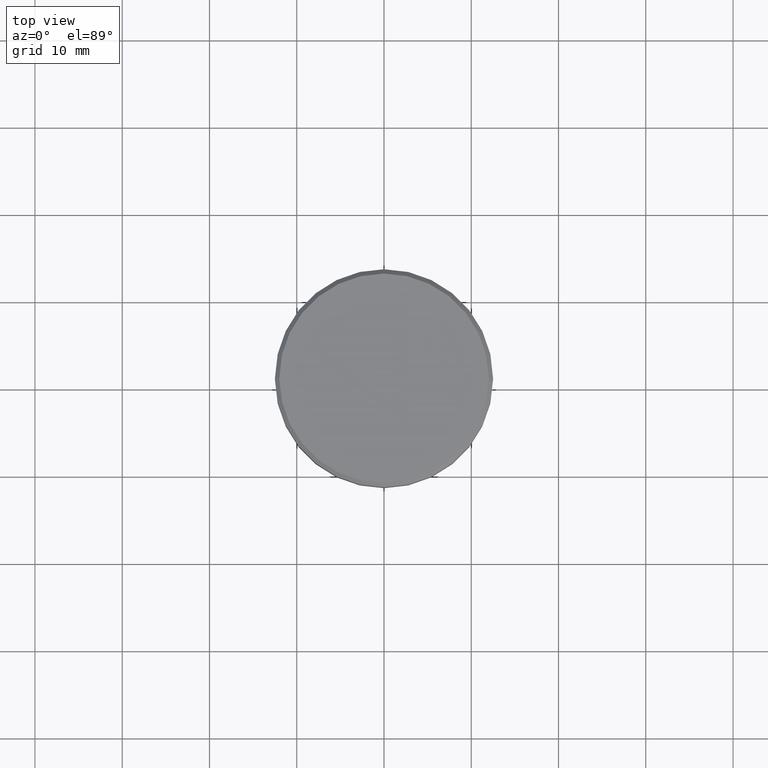
[diagram: clean part render]
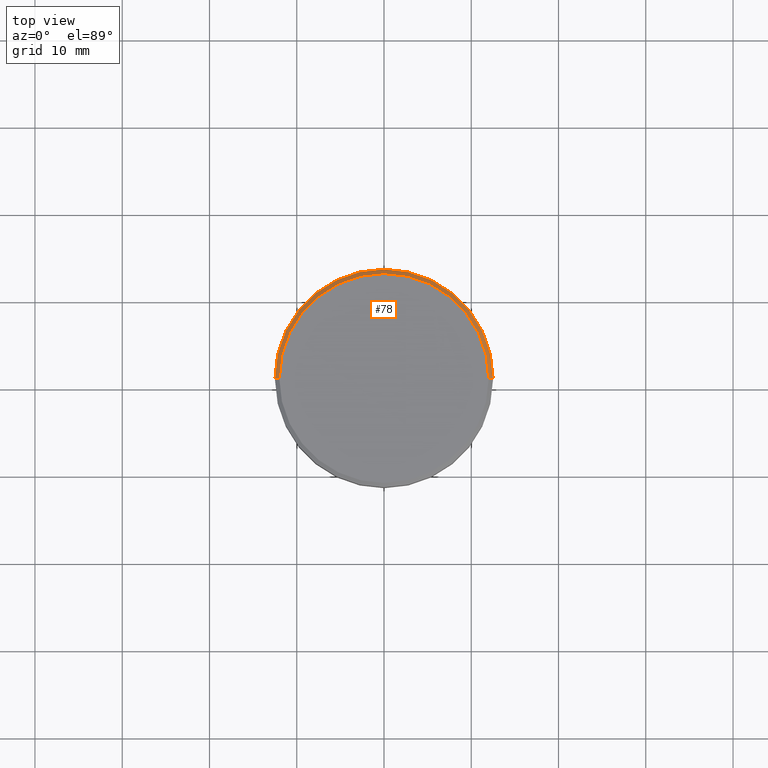
[diagram: same view with one face highlighted and labeled with its STEP entity id]
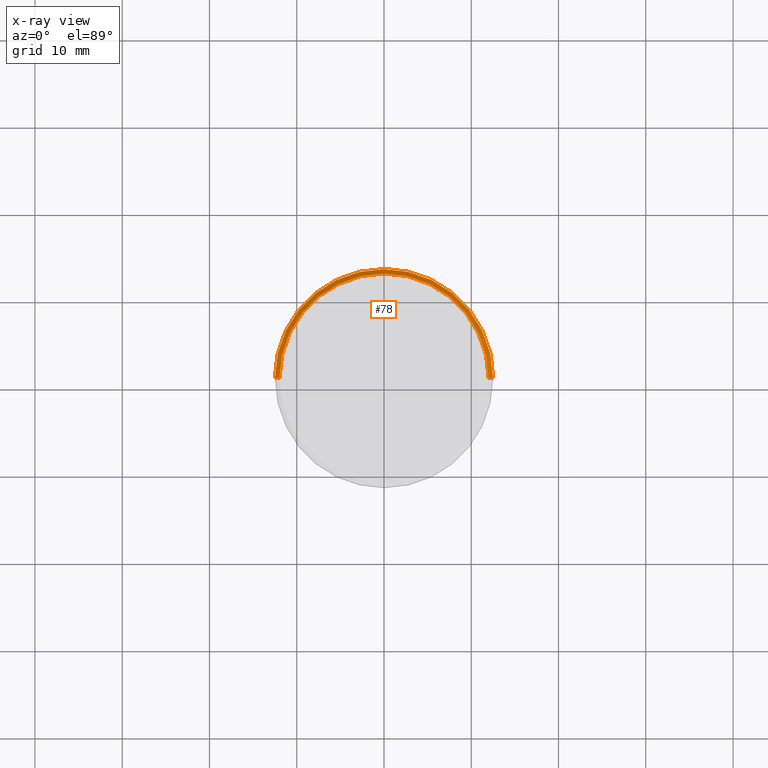
[diagram: x-ray of the same camera — body ghosted, the highlighted face saturated]
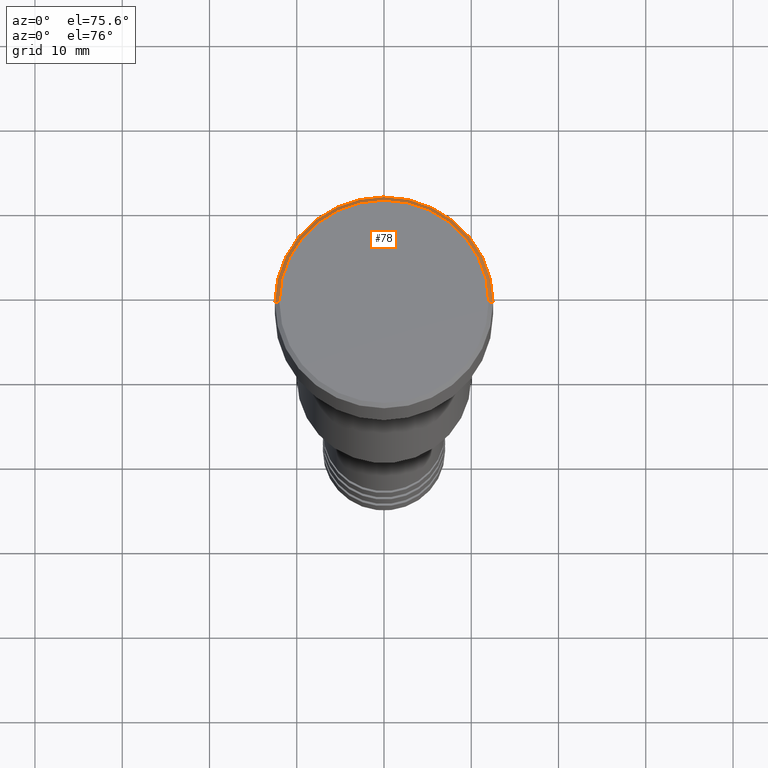
[diagram: same view with one face highlighted and labeled with its STEP entity id]
A machine part, top view. The second image highlights one B-rep face of the part: STEP entity #78.
The next image is the same camera in x-ray: the body ghosted, the highlighted face saturated — about 0% of this face is hidden behind the body in this view.
A second angle (auxiliary view) of the same face is appended — the face is thin or edge-on in the first view.
In plain terms, the highlighted conical surface has half-angle 45 deg.
Its self-contained STEP definition (entity closure, byte-faithful):
#1 = CARTESIAN_POINT ( 'NONE',  ( -12.50000000000000000, 1.530808498934191521E-15, -0.4999999999999987232 ) ) ;
#25 = DIRECTION ( 'NONE',  ( -0.7071067811865512365, 0.000000000000000000, -0.7071067811865439090 ) ) ;
#39 = FACE_OUTER_BOUND ( 'NONE', #513, .T. ) ;
#49 = VERTEX_POINT ( 'NONE', #155 ) ;
#63 = CARTESIAN_POINT ( 'NONE',  ( -11.99999999999999645, 0.000000000000000000, 0.000000000000000000 ) ) ;
#78 = ADVANCED_FACE ( 'NONE', ( #39 ), #742, .T. ) ;
#116 = CARTESIAN_POINT ( 'NONE',  ( -11.99999999999999645, 0.000000000000000000, 0.000000000000000000 ) ) ;
#125 = EDGE_CURVE ( 'NONE', #230, #49, #1021, .T. ) ;
#152 = CARTESIAN_POINT ( 'NONE',  ( 0.000000000000000000, 0.000000000000000000, 0.000000000000000000 ) ) ;
#155 = CARTESIAN_POINT ( 'NONE',  ( 12.50000000000000000, 0.000000000000000000, -0.4999999999999987232 ) ) ;
#230 = VERTEX_POINT ( 'NONE', #1 ) ;
#283 = VECTOR ( 'NONE', #589, 1000.000000000000000 ) ;
#320 = DIRECTION ( 'NONE',  ( 0.000000000000000000, 0.000000000000000000, -1.000000000000000000 ) ) ;
#429 = AXIS2_PLACEMENT_3D ( 'NONE', #152, #860, #677 ) ;
#474 = EDGE_CURVE ( 'NONE', #1068, #230, #1111, .T. ) ;
#501 = CARTESIAN_POINT ( 'NONE',  ( 0.000000000000000000, 0.000000000000000000, -0.4999999999999987232 ) ) ;
#513 = EDGE_LOOP ( 'NONE', ( #714, #867, #602, #553 ) ) ;
#553 = ORIENTED_EDGE ( 'NONE', *, *, #474, .F. ) ;
#564 = AXIS2_PLACEMENT_3D ( 'NONE', #501, #779, #622 ) ;
#589 = DIRECTION ( 'NONE',  ( 0.7071067811865512365, 8.659560562354978464E-17, -0.7071067811865439090 ) ) ;
#597 = EDGE_CURVE ( 'NONE', #969, #1068, #945, .T. ) ;
#602 = ORIENTED_EDGE ( 'NONE', *, *, #125, .F. ) ;
#622 = DIRECTION ( 'NONE',  ( 1.000000000000000000, 0.000000000000000000, 0.000000000000000000 ) ) ;
#662 = EDGE_CURVE ( 'NONE', #969, #49, #1134, .T. ) ;
#677 = DIRECTION ( 'NONE',  ( 1.000000000000000000, 0.000000000000000000, 0.000000000000000000 ) ) ;
#714 = ORIENTED_EDGE ( 'NONE', *, *, #597, .F. ) ;
#742 = CONICAL_SURFACE ( 'NONE', #916, 11.99999999999999645, 0.7853981633974533860 ) ;
#756 = VECTOR ( 'NONE', #25, 1000.000000000000000 ) ;
#772 = CARTESIAN_POINT ( 'NONE',  ( 0.000000000000000000, 0.000000000000000000, 0.000000000000000000 ) ) ;
#779 = DIRECTION ( 'NONE',  ( 0.000000000000000000, 0.000000000000000000, -1.000000000000000000 ) ) ;
#860 = DIRECTION ( 'NONE',  ( -0.000000000000000000, -0.000000000000000000, 1.000000000000000000 ) ) ;
#867 = ORIENTED_EDGE ( 'NONE', *, *, #662, .T. ) ;
#916 = AXIS2_PLACEMENT_3D ( 'NONE', #772, #320, #980 ) ;
#945 = CIRCLE ( 'NONE', #429, 11.99999999999999645 ) ;
#951 = CARTESIAN_POINT ( 'NONE',  ( 11.99999999999999645, 1.469576158976823553E-15, 0.000000000000000000 ) ) ;
#969 = VERTEX_POINT ( 'NONE', #971 ) ;
#971 = CARTESIAN_POINT ( 'NONE',  ( 11.99999999999999645, 1.500192328955507537E-15, 0.000000000000000000 ) ) ;
#980 = DIRECTION ( 'NONE',  ( -1.000000000000000000, 0.000000000000000000, 0.000000000000000000 ) ) ;
#1021 = CIRCLE ( 'NONE', #564, 12.50000000000000000 ) ;
#1068 = VERTEX_POINT ( 'NONE', #63 ) ;
#1111 = LINE ( 'NONE', #116, #756 ) ;
#1134 = LINE ( 'NONE', #951, #283 ) ;